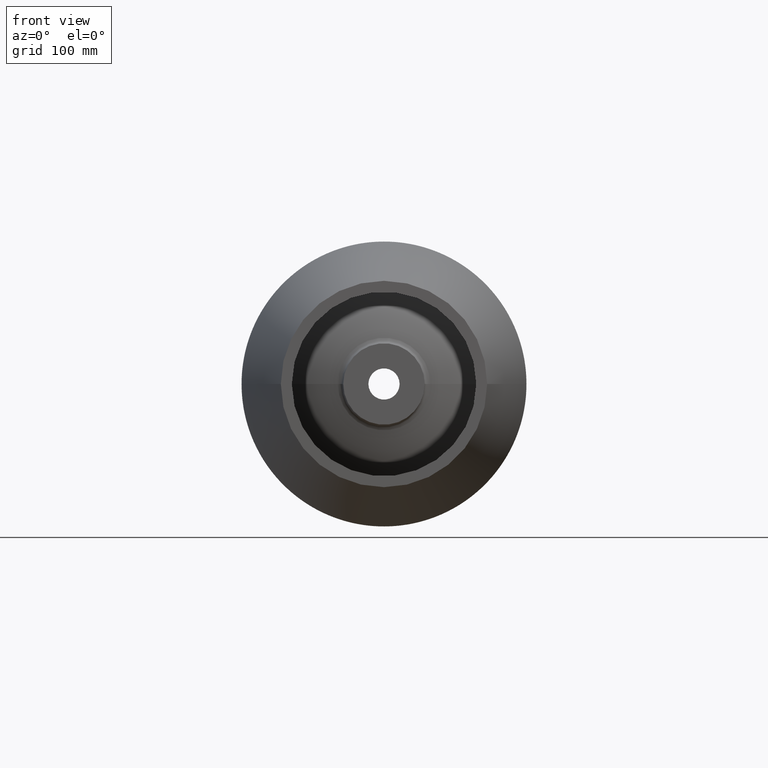
[diagram: clean part render]
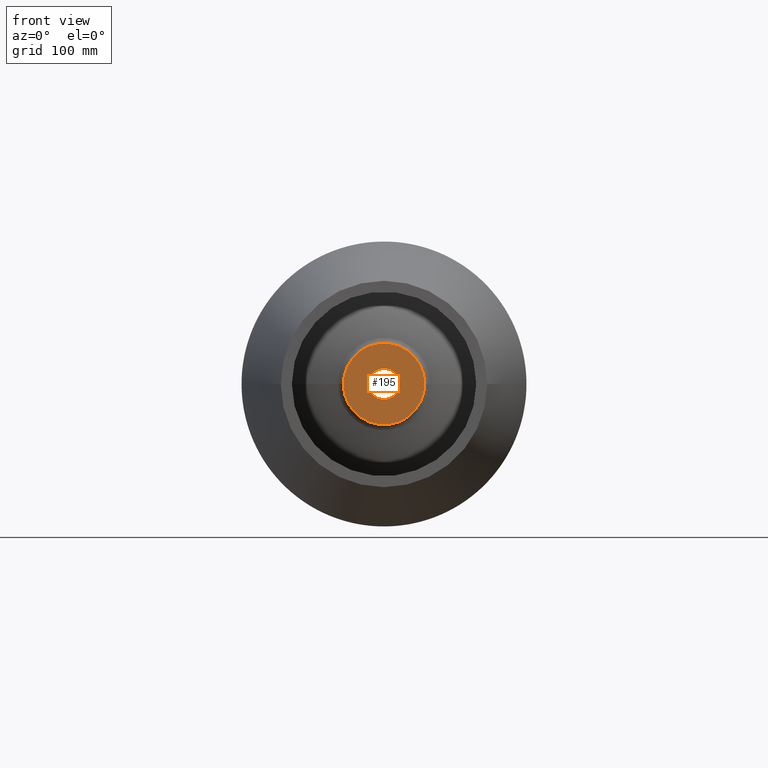
[diagram: same view with one face highlighted and labeled with its STEP entity id]
A machine part, front view. The second image highlights one B-rep face of the part: STEP entity #195.
In plain terms, the highlighted planar face has unit normal (-0, 1, 0).
Its self-contained STEP definition (entity closure, byte-faithful):
#36 = DIRECTION ( 'NONE',  ( -1.246832498358330099E-16, 1.000000000000000000, 0.000000000000000000 ) ) ;
#62 = DIRECTION ( 'NONE',  ( -1.246832498358330099E-16, 1.000000000000000000, -0.000000000000000000 ) ) ;
#65 = CARTESIAN_POINT ( 'NONE',  ( -6.451553807694286215E-31, 708.0000000000000000, 0.000000000000000000 ) ) ;
#79 = FACE_BOUND ( 'NONE', #215, .T. ) ;
#108 = ORIENTED_EDGE ( 'NONE', *, *, #171, .F. ) ;
#111 = ORIENTED_EDGE ( 'NONE', *, *, #437, .F. ) ;
#114 = DIRECTION ( 'NONE',  ( -1.000000000000000000, 0.000000000000000000, 0.000000000000000000 ) ) ;
#116 = CARTESIAN_POINT ( 'NONE',  ( -8.827574088376975840E-14, 708.0000000000000000, 0.000000000000000000 ) ) ;
#117 = EDGE_CURVE ( 'NONE', #455, #219, #560, .T. ) ;
#121 = CARTESIAN_POINT ( 'NONE',  ( -8.827574088376975840E-14, 708.0000000000000000, 0.000000000000000000 ) ) ;
#126 = AXIS2_PLACEMENT_3D ( 'NONE', #121, #514, #570 ) ;
#150 = CARTESIAN_POINT ( 'NONE',  ( -60.00000000000007816, 708.0000000000000000, 0.000000000000000000 ) ) ;
#153 = CIRCLE ( 'NONE', #192, 23.00000000000000000 ) ;
#171 = EDGE_CURVE ( 'NONE', #598, #378, #404, .T. ) ;
#177 = AXIS2_PLACEMENT_3D ( 'NONE', #65, #36, #317 ) ;
#178 = CIRCLE ( 'NONE', #574, 59.99999999999999289 ) ;
#191 = CARTESIAN_POINT ( 'NONE',  ( 59.99999999999990763, 708.0000000000000000, 7.347880794884118356E-15 ) ) ;
#192 = AXIS2_PLACEMENT_3D ( 'NONE', #255, #450, #444 ) ;
#195 = ADVANCED_FACE ( 'NONE', ( #277, #79 ), #459, .F. ) ;
#203 = EDGE_LOOP ( 'NONE', ( #111, #108 ) ) ;
#215 = EDGE_LOOP ( 'NONE', ( #304, #327 ) ) ;
#219 = VERTEX_POINT ( 'NONE', #264 ) ;
#255 = CARTESIAN_POINT ( 'NONE',  ( -8.827574088376975840E-14, 708.0000000000000000, 0.000000000000000000 ) ) ;
#264 = CARTESIAN_POINT ( 'NONE',  ( 22.99999999999991118, 708.0000000000000000, 2.816687638038912746E-15 ) ) ;
#277 = FACE_OUTER_BOUND ( 'NONE', #203, .T. ) ;
#304 = ORIENTED_EDGE ( 'NONE', *, *, #117, .T. ) ;
#310 = DIRECTION ( 'NONE',  ( -1.246832498358330099E-16, 1.000000000000000000, -0.000000000000000000 ) ) ;
#317 = DIRECTION ( 'NONE',  ( -1.000000000000000000, -1.246832498358330099E-16, 0.000000000000000000 ) ) ;
#327 = ORIENTED_EDGE ( 'NONE', *, *, #409, .T. ) ;
#362 = CARTESIAN_POINT ( 'NONE',  ( -23.00000000000008527, 708.0000000000000000, 0.000000000000000000 ) ) ;
#378 = VERTEX_POINT ( 'NONE', #150 ) ;
#404 = CIRCLE ( 'NONE', #126, 59.99999999999999289 ) ;
#409 = EDGE_CURVE ( 'NONE', #219, #455, #153, .T. ) ;
#437 = EDGE_CURVE ( 'NONE', #378, #598, #178, .T. ) ;
#444 = DIRECTION ( 'NONE',  ( -1.000000000000000000, 0.000000000000000000, 0.000000000000000000 ) ) ;
#450 = DIRECTION ( 'NONE',  ( -1.246832498358330099E-16, 1.000000000000000000, -0.000000000000000000 ) ) ;
#455 = VERTEX_POINT ( 'NONE', #362 ) ;
#459 = PLANE ( 'NONE',  #177 ) ;
#506 = CARTESIAN_POINT ( 'NONE',  ( -8.827574088376975840E-14, 708.0000000000000000, 0.000000000000000000 ) ) ;
#512 = DIRECTION ( 'NONE',  ( -1.000000000000000000, 0.000000000000000000, 0.000000000000000000 ) ) ;
#514 = DIRECTION ( 'NONE',  ( -1.246832498358330099E-16, 1.000000000000000000, -0.000000000000000000 ) ) ;
#519 = AXIS2_PLACEMENT_3D ( 'NONE', #506, #62, #114 ) ;
#560 = CIRCLE ( 'NONE', #519, 23.00000000000000000 ) ;
#570 = DIRECTION ( 'NONE',  ( -1.000000000000000000, 0.000000000000000000, 0.000000000000000000 ) ) ;
#574 = AXIS2_PLACEMENT_3D ( 'NONE', #116, #310, #512 ) ;
#598 = VERTEX_POINT ( 'NONE', #191 ) ;